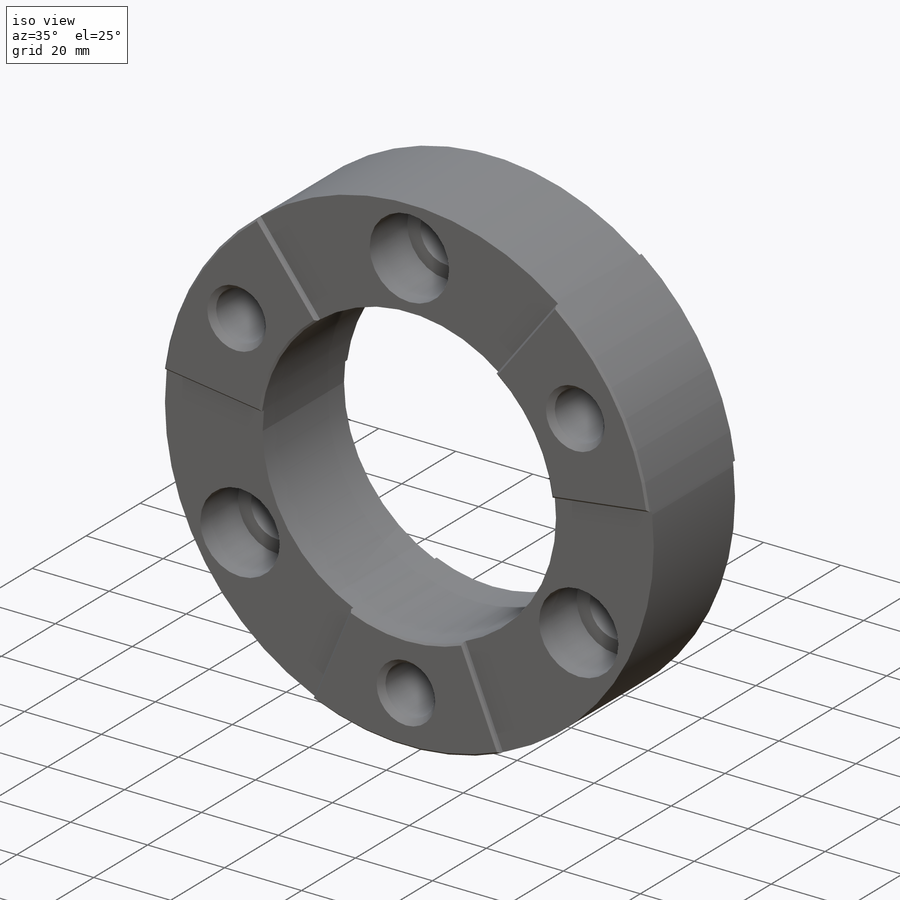
[diagram: iso view]
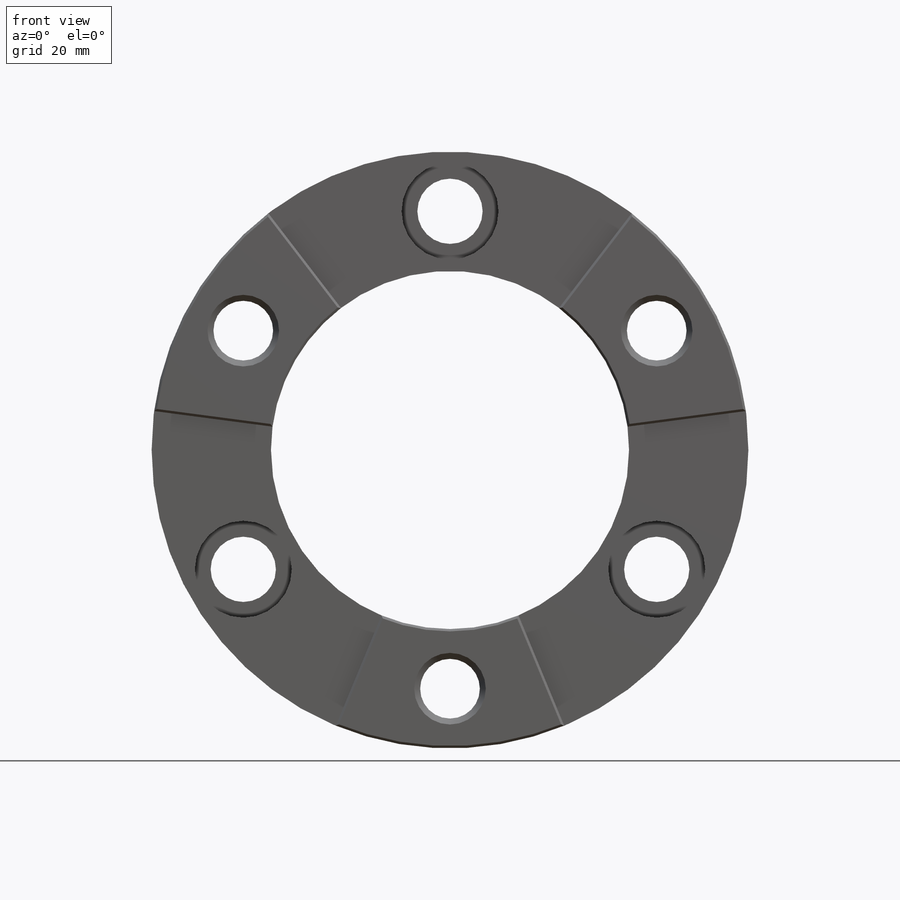
[diagram: front view]
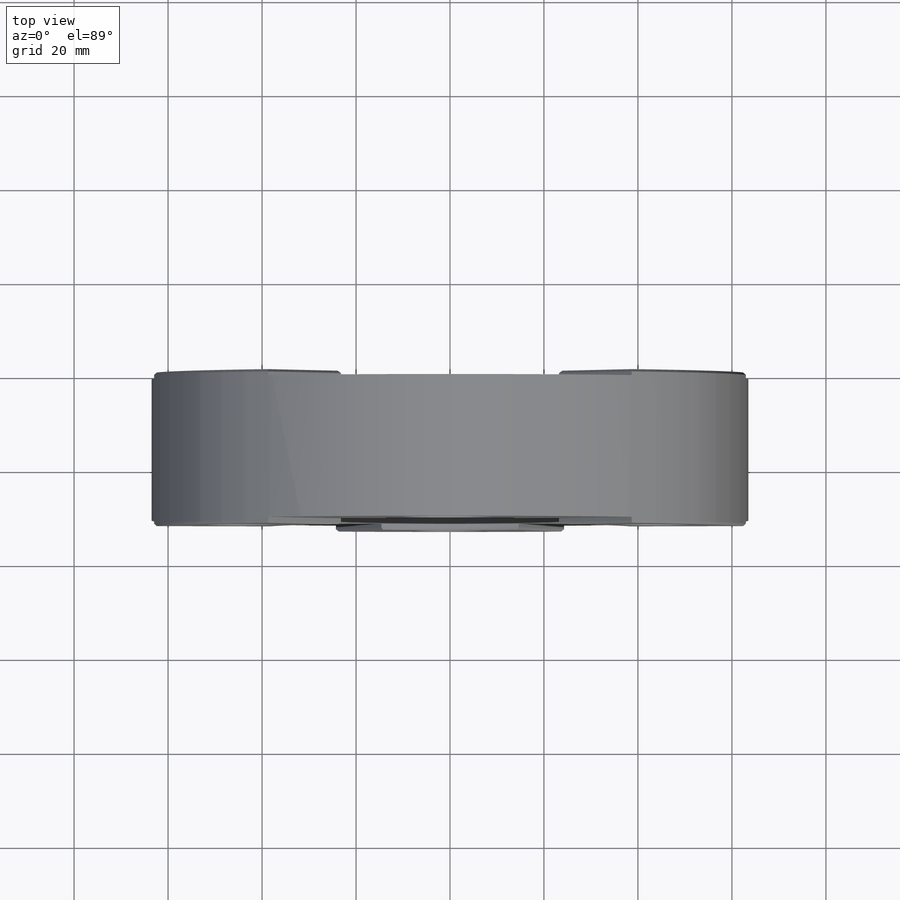
[diagram: top view]
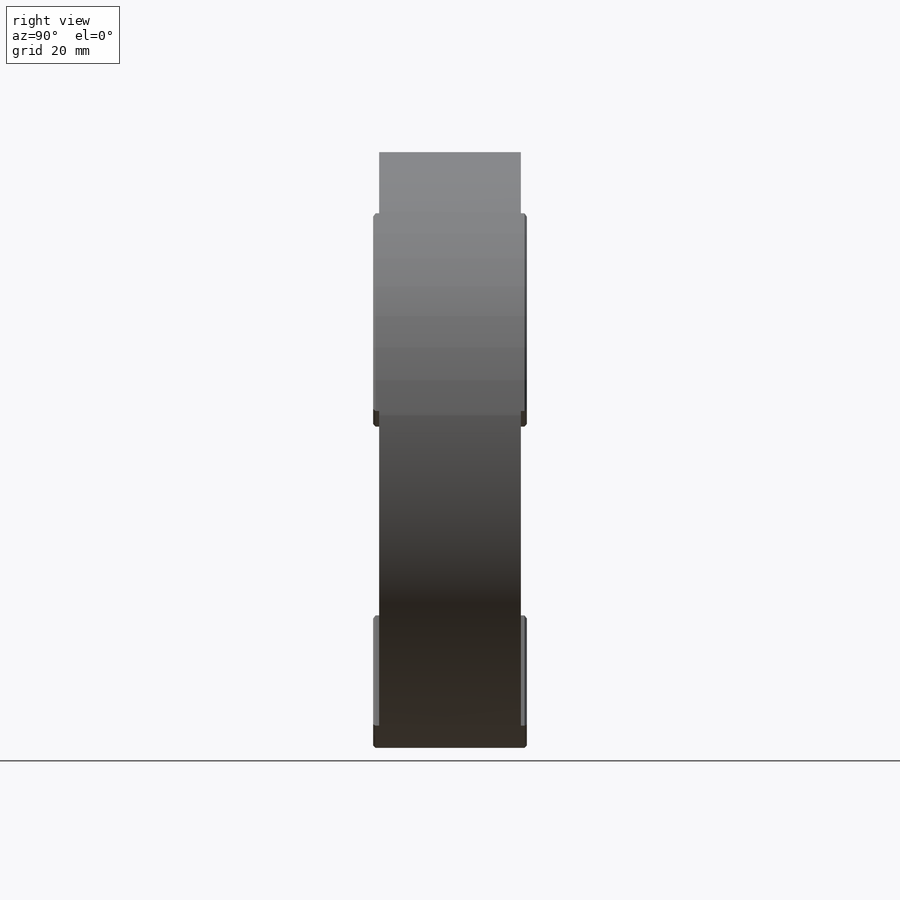
[diagram: right view]
SOLIDWORKS PART (.sldprt)
format: sldprt  version: not decoded by parser v0  size: 365,056 bytes
history: native  units: mm
features: sketch x8, cut_extrude x3, hole x2, material x1, extrude x1, chamfer x1 + 1 further entry (+13 scaffold rows collapsed)
feature tree (30):
  scaffold x13  (default folders/planes/origin — collapsed)
  material  "AISI 1020 Steel, Cold Rolled"
  "Origin"  ID=-1
  sketch  "Sketch1"  dims[D1=127.0mm]
  extrude  "Extrude1"  Depth=32.7025mm
  sketch  "Sketch2"  dims[D1=76.2mm]
  cut_extrude  "Cut-Extrude1"  [1 undecoded]
  sketch  "Sketch3"  dims[c1.D1=38.1mm c2.D1=22.5deg c2.D2=~35.19981mm c3.D2=45.0deg c3.D3=38.1mm c4.D3=75.0deg c4.D4=38.1mm c5.D4=45.0deg c5.D5=~31.740842mm c6.D5=75.0deg c6.D6=~23.19381mm c7.D6=45.0deg]
  cut_extrude  "Cut-Extrude2"  Depth=1.27mm
  sketch  "Sketch4"  dims[c1.D1=~35.97275mm c2.D1=22.5deg c2.D2=~35.723764mm c3.D2=45.0deg c3.D3=38.1mm c4.D3=75.0deg c4.D4=38.1mm c5.D4=45.0deg c5.D5=~30.880187mm c6.D5=75.0deg c6.D6=~23.19381mm c7.D6=45.0deg c7.D1=~35.97275mm c8.D1=22.5deg]
  cut_extrude  "Cut-Extrude3"  Depth=1.27mm
  hole  "CBORE for 1/2 Socket Head Cap Screw1"  Diameter=13.89126mm Depth=31.4325mm
  sketch  "Sketch6"  dims[c1.D2=101.6mm c1.D1=~45.380803mm c2.D1=120.0deg]
  sketch  "Sketch5"  dims[hole-wizard template sketch: 41 standard entries collapsed; hole parameters kept: c12.Thru Hole Dia.=~13.89126mm c12.Thru Hole Depth=31.4325mm c12.C'Bore Dia.=20.6375mm c12.C'Bore Depth=13.97mm]
  hole  "1/2-20 Tapped Hole1"  Diameter=12.7mm Depth=32.7025mm
  sketch  "Sketch8"  dims[c1.D2=101.6mm c1.D1=~43.767324mm c2.D1=120.0deg]
  sketch  "Sketch9"  dims[hole-wizard template sketch: 47 standard entries collapsed; hole parameters kept: c15.Thru Tap Drill Depth=32.7025mm c15.Near C'Sink Dia.=15.24mm c15.D4=~3.666174mm c15.Near C'Sink Angle=82.0deg c15.Far C'Sink Dia.=15.24mm c15.D6=~9.919017mm c15.Far C'Sink Angle=82.0deg]
  chamfer  "Chamfer1"  Distance=0.508mm Angle=45deg
decode coverage: 14 of 15 modeling features carry decoded parameters; 1 rows unclassified (native names shown)
note: ~ marks probable driven/reference dimensions
note: 1 parameter value undecoded
note: suppression state not decoded; provenance and decode notes live in map.json
